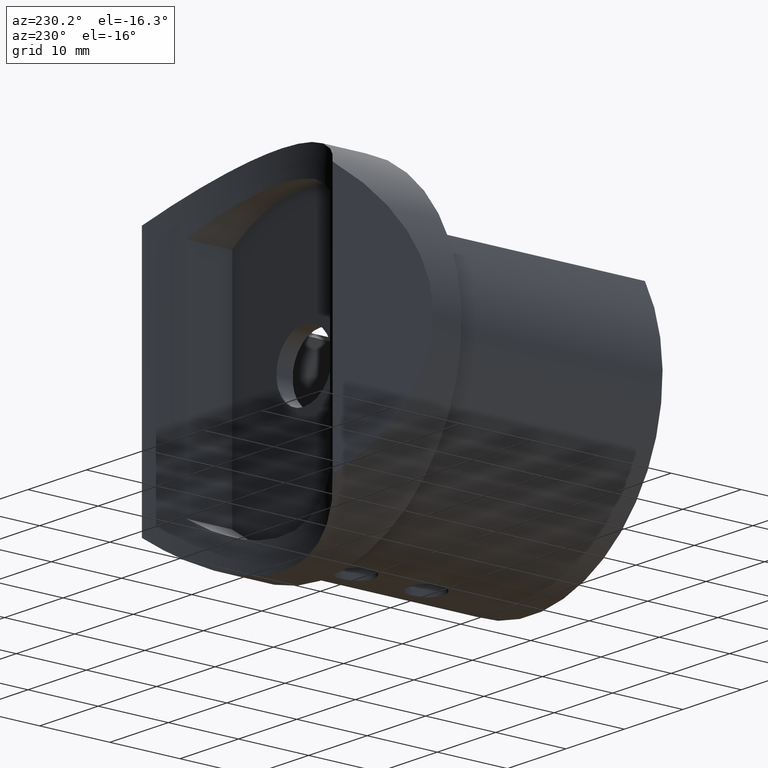
[diagram: clean part render]
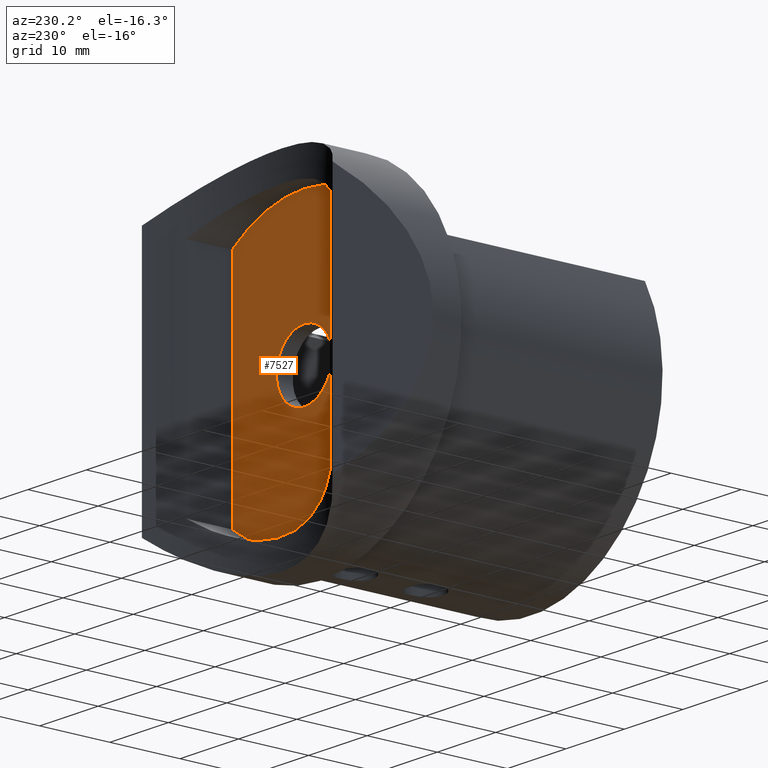
[diagram: same view with one face highlighted and labeled with its STEP entity id]
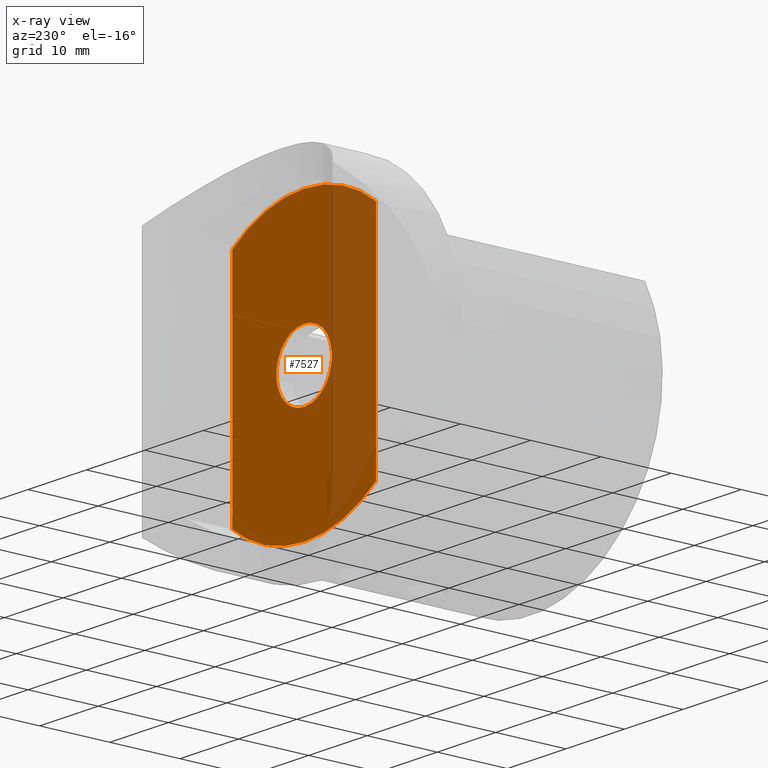
[diagram: x-ray of the same camera — body ghosted, the highlighted face saturated]
A machine part, auxiliary view. The second image highlights one B-rep face of the part: STEP entity #7527.
The next image is the same camera in x-ray: the body ghosted, the highlighted face saturated — about 32% of this face is hidden behind the body in this view.
In plain terms, the highlighted planar face has unit normal (0, 1, 0).
Its self-contained STEP definition (entity closure, byte-faithful):
#593 = CARTESIAN_POINT ( 'NONE',  ( -12.30999999999999700, 2.299999999999996300, 15.95262987723341100 ) ) ;
#958 = FACE_OUTER_BOUND ( 'NONE', #6218, .T. ) ;
#971 = VECTOR ( 'NONE', #10494, 1000.000000000000000 ) ;
#1107 = DIRECTION ( 'NONE',  ( 0.0000000000000000000, 1.000000000000000000, 0.0000000000000000000 ) ) ;
#1112 = CARTESIAN_POINT ( 'NONE',  ( 5.817072295949927400E-016, 2.299999999999999800, 4.750000000000000000 ) ) ;
#1275 = EDGE_LOOP ( 'NONE', ( #12099, #4374 ) ) ;
#1283 = LINE ( 'NONE', #12462, #971 ) ;
#1524 = CARTESIAN_POINT ( 'NONE',  ( 0.0000000000000000000, 2.299999999999996300, 20.14999999999999900 ) ) ;
#1668 = VERTEX_POINT ( 'NONE', #12560 ) ;
#1894 = DIRECTION ( 'NONE',  ( 0.0000000000000000000, -0.0000000000000000000, 1.000000000000000000 ) ) ;
#1939 = CARTESIAN_POINT ( 'NONE',  ( 0.0000000000000000000, 2.299999999999999800, 0.0000000000000000000 ) ) ;
#2212 = CARTESIAN_POINT ( 'NONE',  ( 0.0000000000000000000, 2.299999999999999800, 0.0000000000000000000 ) ) ;
#2279 = EDGE_CURVE ( 'NONE', #12647, #4204, #8584, .T. ) ;
#2287 = CARTESIAN_POINT ( 'NONE',  ( 0.0000000000000000000, 2.299999999999999800, -4.750000000000000000 ) ) ;
#2340 = AXIS2_PLACEMENT_3D ( 'NONE', #8111, #6369, #7452 ) ;
#2381 = CIRCLE ( 'NONE', #6342, 4.750000000000000000 ) ;
#3176 = CIRCLE ( 'NONE', #11728, 20.14999999999999900 ) ;
#3379 = EDGE_CURVE ( 'NONE', #10220, #5103, #6495, .T. ) ;
#4129 = AXIS2_PLACEMENT_3D ( 'NONE', #7976, #8820, #12845 ) ;
#4140 = CARTESIAN_POINT ( 'NONE',  ( 0.0000000000000000000, 2.299999999999996300, 0.0000000000000000000 ) ) ;
#4204 = VERTEX_POINT ( 'NONE', #2287 ) ;
#4374 = ORIENTED_EDGE ( 'NONE', *, *, #2279, .T. ) ;
#4924 = AXIS2_PLACEMENT_3D ( 'NONE', #1939, #7879, #1894 ) ;
#4962 = EDGE_CURVE ( 'NONE', #5103, #1668, #3176, .T. ) ;
#5103 = VERTEX_POINT ( 'NONE', #1524 ) ;
#5679 = PLANE ( 'NONE',  #4924 ) ;
#6119 = DIRECTION ( 'NONE',  ( -0.0000000000000000000, -1.000000000000000000, -0.0000000000000000000 ) ) ;
#6218 = EDGE_LOOP ( 'NONE', ( #6587, #6848, #8416, #11491, #8551 ) ) ;
#6342 = AXIS2_PLACEMENT_3D ( 'NONE', #2212, #6119, #9141 ) ;
#6369 = DIRECTION ( 'NONE',  ( 0.0000000000000000000, 1.000000000000000000, 0.0000000000000000000 ) ) ;
#6480 = EDGE_CURVE ( 'NONE', #4204, #12647, #2381, .T. ) ;
#6495 = CIRCLE ( 'NONE', #10521, 20.14999999999999900 ) ;
#6587 = ORIENTED_EDGE ( 'NONE', *, *, #7284, .T. ) ;
#6848 = ORIENTED_EDGE ( 'NONE', *, *, #10137, .T. ) ;
#7068 = VECTOR ( 'NONE', #10084, 1000.000000000000000 ) ;
#7135 = EDGE_CURVE ( 'NONE', #12028, #10220, #1283, .T. ) ;
#7284 = EDGE_CURVE ( 'NONE', #1668, #9363, #11768, .T. ) ;
#7452 = DIRECTION ( 'NONE',  ( 0.0000000000000000000, 0.0000000000000000000, 1.000000000000000000 ) ) ;
#7527 = ADVANCED_FACE ( 'NONE', ( #958, #7820 ), #5679, .T. ) ;
#7820 = FACE_BOUND ( 'NONE', #1275, .T. ) ;
#7879 = DIRECTION ( 'NONE',  ( 0.0000000000000000000, 1.000000000000000000, 0.0000000000000000000 ) ) ;
#7976 = CARTESIAN_POINT ( 'NONE',  ( 0.0000000000000000000, 2.299999999999999800, 0.0000000000000000000 ) ) ;
#8085 = DIRECTION ( 'NONE',  ( 0.0000000000000000000, 0.0000000000000000000, 1.000000000000000000 ) ) ;
#8111 = CARTESIAN_POINT ( 'NONE',  ( 0.0000000000000000000, 2.299999999999996300, 0.0000000000000000000 ) ) ;
#8416 = ORIENTED_EDGE ( 'NONE', *, *, #7135, .T. ) ;
#8551 = ORIENTED_EDGE ( 'NONE', *, *, #4962, .T. ) ;
#8584 = CIRCLE ( 'NONE', #4129, 4.750000000000000000 ) ;
#8667 = CARTESIAN_POINT ( 'NONE',  ( 12.31000000000000400, 2.299999999999996300, -15.95262987723340800 ) ) ;
#8726 = CARTESIAN_POINT ( 'NONE',  ( -12.31000000000000400, 2.299999999999996300, -15.95262987723340800 ) ) ;
#8820 = DIRECTION ( 'NONE',  ( -0.0000000000000000000, -1.000000000000000000, -0.0000000000000000000 ) ) ;
#9141 = DIRECTION ( 'NONE',  ( 0.0000000000000000000, 0.0000000000000000000, 1.000000000000000000 ) ) ;
#9148 = DIRECTION ( 'NONE',  ( 0.0000000000000000000, 0.0000000000000000000, 1.000000000000000000 ) ) ;
#9153 = CARTESIAN_POINT ( 'NONE',  ( 0.0000000000000000000, 2.299999999999996300, 0.0000000000000000000 ) ) ;
#9238 = CARTESIAN_POINT ( 'NONE',  ( 12.31000000000000400, 2.299999999999996300, -15.95262987723340800 ) ) ;
#9363 = VERTEX_POINT ( 'NONE', #9238 ) ;
#9632 = CIRCLE ( 'NONE', #2340, 20.14999999999999900 ) ;
#10084 = DIRECTION ( 'NONE',  ( 0.0000000000000000000, 0.0000000000000000000, -1.000000000000000000 ) ) ;
#10137 = EDGE_CURVE ( 'NONE', #9363, #12028, #9632, .T. ) ;
#10220 = VERTEX_POINT ( 'NONE', #593 ) ;
#10494 = DIRECTION ( 'NONE',  ( 0.0000000000000000000, 0.0000000000000000000, 1.000000000000000000 ) ) ;
#10521 = AXIS2_PLACEMENT_3D ( 'NONE', #9153, #1107, #8085 ) ;
#11059 = DIRECTION ( 'NONE',  ( 0.0000000000000000000, 1.000000000000000000, 0.0000000000000000000 ) ) ;
#11491 = ORIENTED_EDGE ( 'NONE', *, *, #3379, .T. ) ;
#11728 = AXIS2_PLACEMENT_3D ( 'NONE', #4140, #11059, #9148 ) ;
#11768 = LINE ( 'NONE', #8667, #7068 ) ;
#12028 = VERTEX_POINT ( 'NONE', #8726 ) ;
#12099 = ORIENTED_EDGE ( 'NONE', *, *, #6480, .T. ) ;
#12462 = CARTESIAN_POINT ( 'NONE',  ( -12.31000000000000400, 2.299999999999996300, -15.95262987723340800 ) ) ;
#12560 = CARTESIAN_POINT ( 'NONE',  ( 12.31000000000000400, 2.299999999999996300, 15.95262987723340800 ) ) ;
#12647 = VERTEX_POINT ( 'NONE', #1112 ) ;
#12845 = DIRECTION ( 'NONE',  ( 0.0000000000000000000, 0.0000000000000000000, 1.000000000000000000 ) ) ;